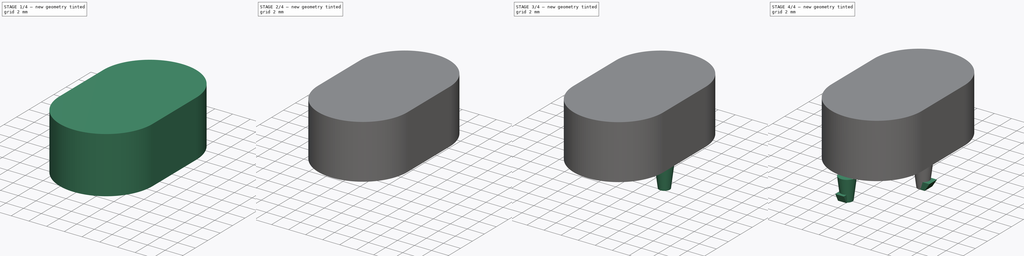
[diagram: build sequence overview — one tinted view per stage of 4, left to right]
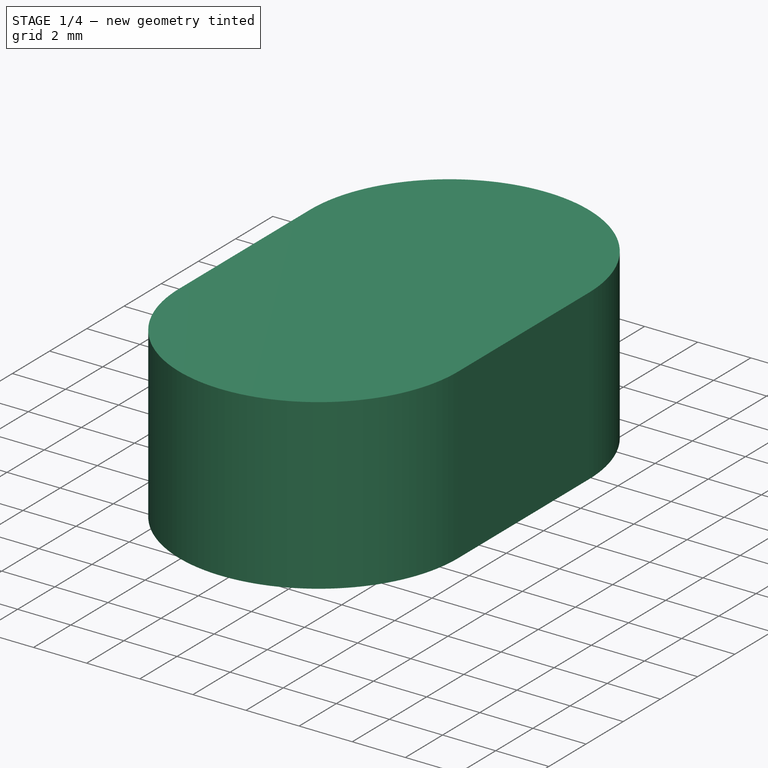
[diagram: stage 1 of 4 — iso view after this stage's code; geometry added in this stage tinted green]
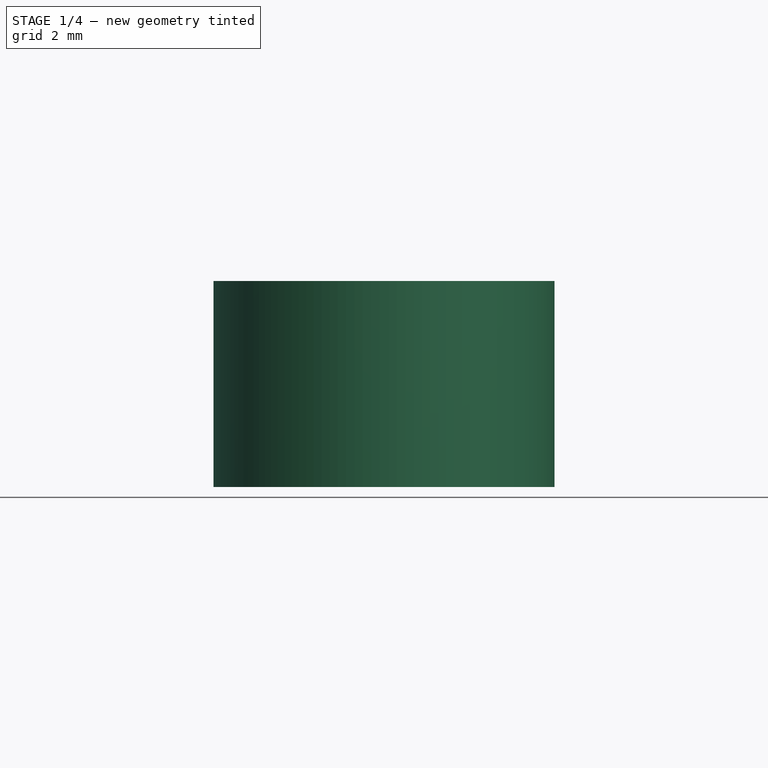
[diagram: stage 1 of 4 — front view after this stage's code; geometry added in this stage tinted green]
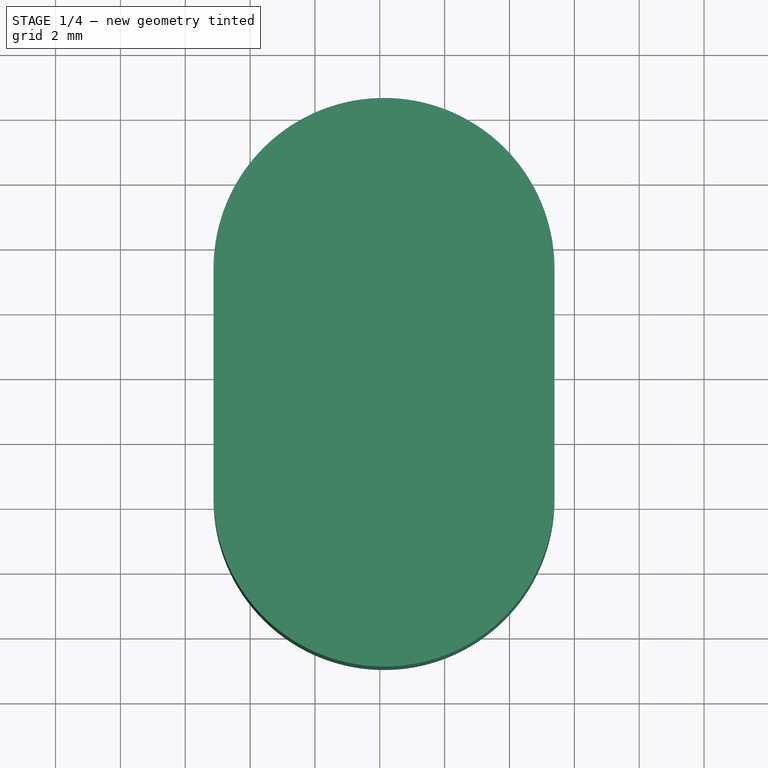
[diagram: stage 1 of 4 — top view after this stage's code; geometry added in this stage tinted green]
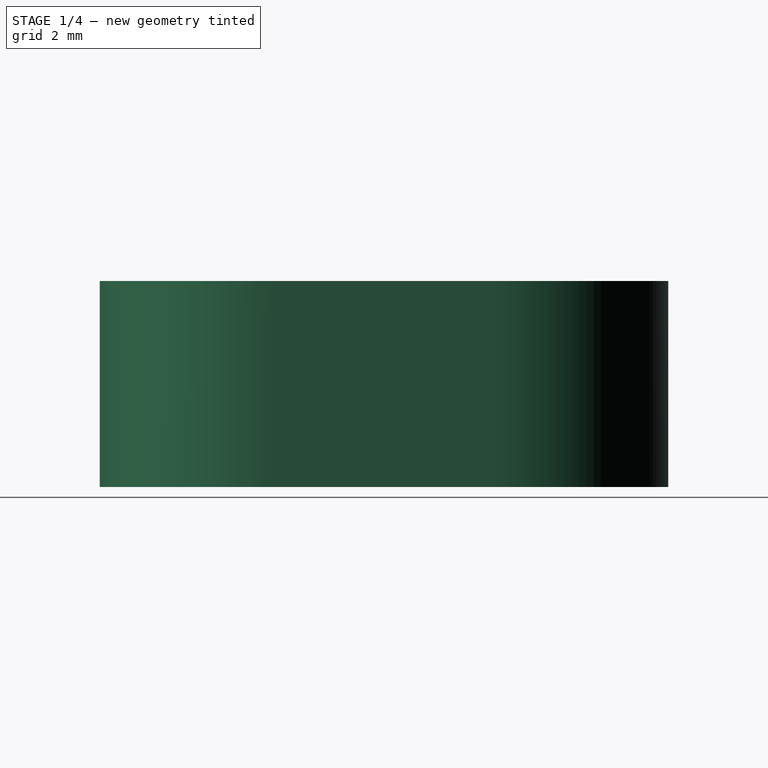
[diagram: stage 1 of 4 — right view after this stage's code; geometry added in this stage tinted green]
FCSTD DOCUMENT  (FreeCAD 1.0R39109 (Git))
Label: Gymtimer
License: All rights reserved
LicenseURL: http://en.wikipedia.org/wiki/All_rights_reserved
objects: Sketcher::SketchObject×16, App::Part×7, Part::Feature×6, PartDesign::Pad×6, PartDesign::AdditiveLoft×4, PartDesign::Line×2, PartDesign::Thickness×1, PartDesign::Pocket×1, PartDesign::Plane×1, PartDesign::Body×1
note: 78 computed .brp shape members not serialized (recipe doc carries the construction recipe); baked Part::Feature solids carry a one-line shape summary decoded from their .brp

FEATURE [Part::Feature] Part__Feature  label="COMPOUND"
  shape: bbox 4.6 x 12.3 x 5.146 mm, 56 faces, 4 solids (baked)
FEATURE [App::Part] Z4TH7B2120042P
  Group = -> [Part__Feature]
  Origin = -> Origin
  Placement = pos=(-6.5,-19,1.63) rot=(0,0,1;3.14159rad)
FEATURE [Part::Feature] Part__Feature001  label="COMPOUND001"
  shape: bbox 4.9 x 3 x 1.435 mm, 92 faces, 10 solids (baked)
FEATURE [App::Part] MSOP_8  label="MSOP-8"
  Group = -> [Part__Feature001]
  Origin = -> Origin001
  Placement = pos=(9.325,-20.5,1.63) rot=(0,0,1;1.5708rad)
FEATURE [Part::Feature] Part__Feature002  label="COMPOUND002"
  shape: bbox 6.617 x 2.517 x 6.017 mm, 283 faces, 5 solids (baked)
FEATURE [App::Part] evqq2_bfkpuy_02w_  label="evqq2-bfkpuy-02w_"
  Group = -> [Part__Feature002]
  Origin = -> Origin002
  Placement = pos=(0,-9.5,1.63) rot=(0,0.707107,0.707107;3.14159rad)
FEATURE [Part::Feature] Part__Feature003  label="SOLID"
  shape: bbox 22.35 x 7.063 x 15.49 mm, 138 faces (baked)
FEATURE [App::Part] BK_913  label="BK-913"
  Group = -> [Part__Feature003]
  Origin = -> Origin003
  Placement = pos=(0,-38,-1.07) rot=(1,0,0;1.5708rad)
FEATURE [Part::Feature] Part__Feature004  label="COMPOUND003"
  shape: bbox 0.625 x 0.325 x 0.32 mm, 18 faces, 3 solids (baked)
FEATURE [App::Part] TVS___PESD4V0Y1BSFYL_cp
  Group = -> [Part__Feature004]
  Origin = -> Origin004
  Placement = pos=(5,-22.66,1.63) rot=(0,0,-1;1.5708rad)
FEATURE [App::Part] Belt_Clip_cp
  Origin = -> Origin005
  Placement = pos=(-2.4e-15,-42.75,-0.05) rot=(-0.707107,0.707107,0;3.14159rad)
FEATURE [Part::Feature] Part__Feature006  label="PCB"
  shape: bbox 25.75 x 44 x 1.58 mm, 43 faces (baked)
FEATURE [App::Part] GymTimer_1  label="GymTimer 1"
  Group = -> [Z4TH7B2120042P,MSOP_8,evqq2_bfkpuy_02w_,BK_913,TVS___PESD4V0Y1BSFYL_cp,Belt_Clip_cp,Part__Feature006]
  Origin = -> Origin006
  Placement = pos=(6.604,22.86,0) rot=(0,0,1;0rad)
FEATURE [Sketcher::SketchObject] Sketch
  ArcFitTolerance = 0
  AttachmentSupport = -> [XY_Plane007]
  FullyConstrained = false
  MakeInternals = false
  MapMode = 5
  sketch-geometry (4):
    g0: ArcOfCircle CenterX=0.129038 CenterY=5.31584 CenterZ=0 NormalX=0 NormalY=0 NormalZ=1 AngleXU=0 Radius=5.25848 StartAngle=0 EndAngle=3.14159
    g1: ArcOfCircle CenterX=0.129038 CenterY=-1.70591 CenterZ=0 NormalX=0 NormalY=0 NormalZ=1 AngleXU=0 Radius=5.25848 StartAngle=3.14159 EndAngle=6.28319
    g2: LineSegment StartX=-5.12945 StartY=5.31584 StartZ=0 EndX=-5.12945 EndY=-1.7059 EndZ=0
    g3: LineSegment StartX=5.38752 StartY=-1.70591 StartZ=0 EndX=5.38752 EndY=5.31584 EndZ=0
  constraints (6):
    c: Tangent(g0,g2) = -1.5708
    c: Tangent(g2,g1) = -1.5708
    c: Tangent(g1,g3) = -1.5708
    c: Tangent(g3,g0) = -1.5708
    c: Equal(g0,g1)
    c: Vertical(g2)
FEATURE [PartDesign::Pad] Pad
  Direction = (0,0,1)
  Length = 6.35
  Length2 = 9.906
  Profile = -> Sketch
  ReferenceAxis = -> Sketch [N_Axis]
  Suppressed = false
  Type = 0
FEATURE [PartDesign::Thickness] Thickness
  Base = -> Pad [Face5]
  BaseFeature = -> Pad
  Intersection = false
  Join = 0
  Mode = 0
  Reversed = true
  SupportTransform = false
  Suppressed = false
  Value = 1.397
FEATURE [Sketcher::SketchObject] Sketch001
  ArcFitTolerance = 0
  AttachmentSupport = -> [XZ_Plane007]
  FullyConstrained = false
  MakeInternals = false
  MapMode = 5
  Placement = pos=(0,0,0) rot=(1,0,0;1.5708rad)
  sketch-geometry (10):
    g0: LineSegment StartX=-2.2491 StartY=0 StartZ=0 EndX=-2.2491 EndY=3.16895 EndZ=0
    g1: LineSegment StartX=-2.2491 StartY=3.16895 StartZ=0 EndX=-1.41925 EndY=5.02401 EndZ=0
    g2: LineSegment StartX=-1.41925 StartY=5.02401 StartZ=0 EndX=1.61944 EndY=5.02401 EndZ=0
    g3: LineSegment StartX=1.61944 StartY=5.02401 StartZ=0 EndX=2.45243 EndY=3.18428 EndZ=0
    g4: LineSegment StartX=2.45243 StartY=3.18428 StartZ=0 EndX=2.45243 EndY=0 EndZ=0
    g5: LineSegment StartX=2.45243 StartY=0 StartZ=0 EndX=4.66591 EndY=0 EndZ=0
    g6: LineSegment StartX=4.66591 StartY=0 StartZ=0 EndX=4.66591 EndY=5.88397 EndZ=0
    g7: LineSegment StartX=4.66591 StartY=5.88397 StartZ=0 EndX=-4.4826 EndY=5.88397 EndZ=0
    g8: LineSegment StartX=-4.4826 StartY=5.88397 StartZ=0 EndX=-4.4826 EndY=0 EndZ=0
    g9: LineSegment StartX=-4.4826 StartY=0 StartZ=0 EndX=-2.2491 EndY=0 EndZ=0
  constraints (20):
    c: PointOnObject(g0,g-1)
    c: Vertical(g0)
    c: Coincident(g0,g1)
    c: Coincident(g1,g2)
    c: Horizontal(g2)
    c: Coincident(g2,g3)
    c: Coincident(g3,g4)
    c: PointOnObject(g4,g-1)
    c: Vertical(g4)
    c: Coincident(g4,g5)
    c: PointOnObject(g5,g-1)
    c: Coincident(g5,g6)
    c: Vertical(g6)
    c: Coincident(g6,g7)
    c: Horizontal(g7)
    c: Coincident(g7,g8)
    c: PointOnObject(g8,g-1)
    c: Vertical(g8)
    c: Coincident(g8,g9)
    c: Coincident(g9,g0)
FEATURE [PartDesign::Pad] Pad001
  BaseFeature = -> Thickness
  Direction = (0,-1,2e-16)
  Length = 2.54
  Length2 = 9.906
  Midplane = true
  Profile = -> Sketch001
  ReferenceAxis = -> Sketch001 [N_Axis]
  Suppressed = false
  Type = 0
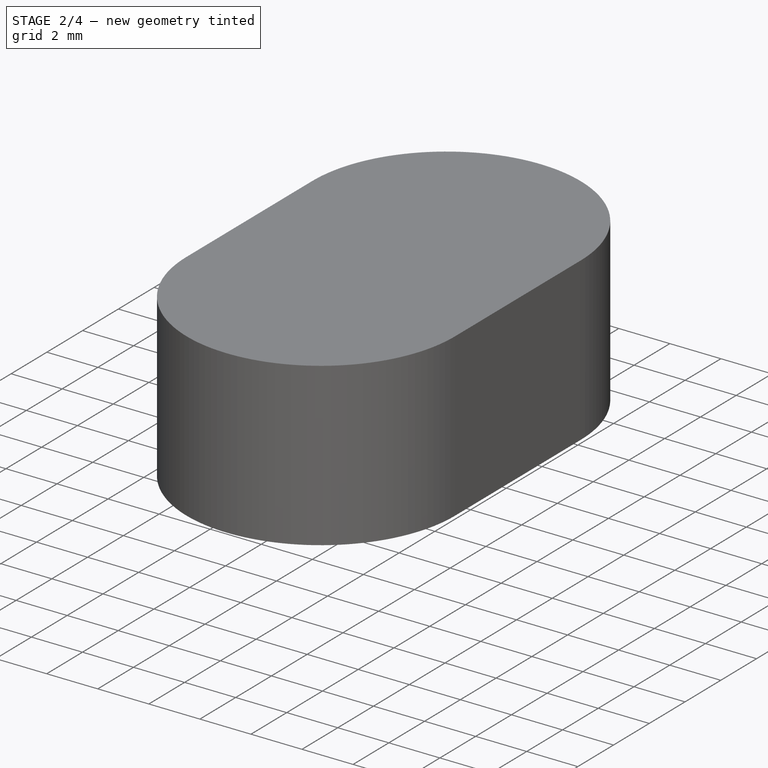
[diagram: stage 2 of 4 — iso view after this stage's code; geometry added in this stage tinted green]
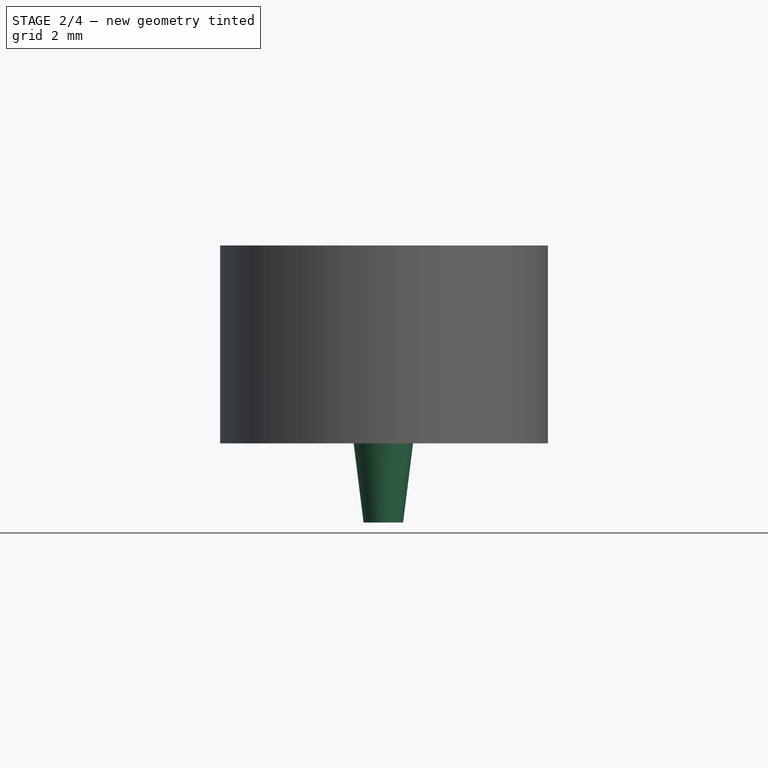
[diagram: stage 2 of 4 — front view after this stage's code; geometry added in this stage tinted green]
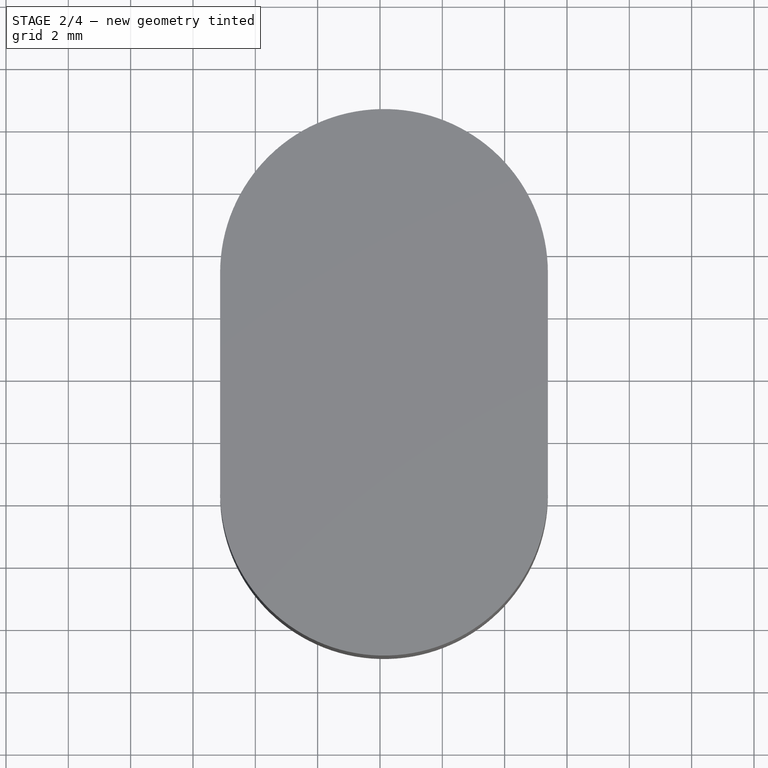
[diagram: stage 2 of 4 — top view after this stage's code; geometry added in this stage tinted green]
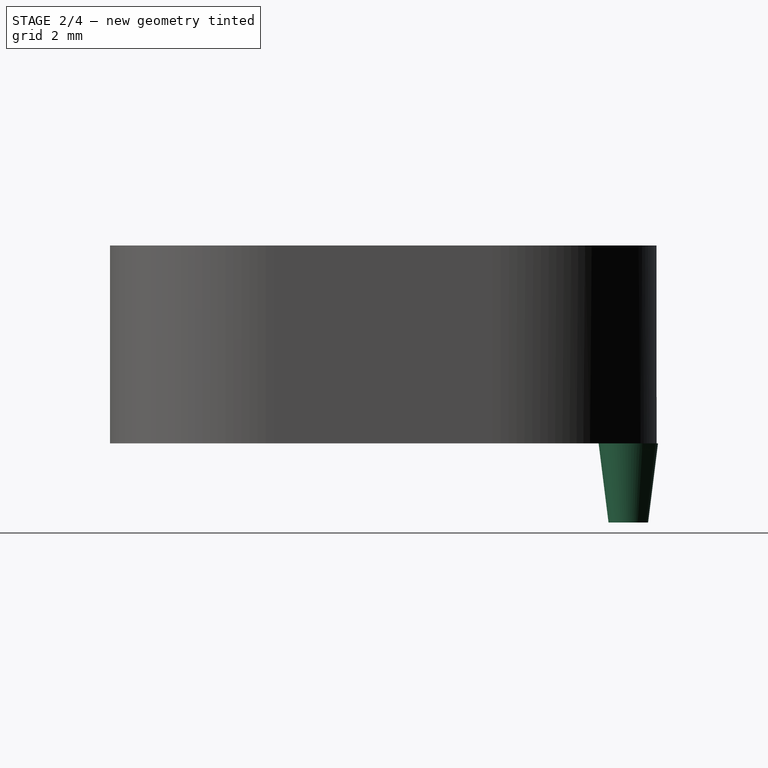
[diagram: stage 2 of 4 — right view after this stage's code; geometry added in this stage tinted green]
FEATURE [Sketcher::SketchObject] Sketch002
  ArcFitTolerance = 0
  AttachmentOffset = pos=(0,25.4,-3.937) rot=(0,0,1;0rad)
  AttachmentSupport = -> [XZ_Plane007]
  FullyConstrained = false
  MakeInternals = false
  MapMode = 5
  Placement = pos=(0,3.937,25.4) rot=(1,0,0;1.5708rad)
  sketch-geometry (8):
    g0: LineSegment StartX=-3.87631 StartY=-25.3358 StartZ=0 EndX=-0.654982 EndY=-21.9078 EndZ=0
    g1: ArcOfCircle CenterX=0.081753 CenterY=-22.6001 CenterZ=0 NormalX=0 NormalY=0 NormalZ=1 AngleXU=0 Radius=1.01098 StartAngle=0.754329 EndAngle=2.38726
    g2: LineSegment StartX=0.818489 StartY=-21.9078 StartZ=0 EndX=4.04622 EndY=-25.3426 EndZ=0
    g3: LineSegment StartX=4.04622 StartY=-25.3426 StartZ=0 EndX=4.9558 EndY=-25.3426 EndZ=0
    g4: LineSegment StartX=4.9558 StartY=-25.3426 StartZ=0 EndX=4.9558 EndY=-19.4509 EndZ=0
    g5: LineSegment StartX=4.9558 StartY=-19.4509 StartZ=0 EndX=-4.54403 EndY=-19.4509 EndZ=0
    g6: LineSegment StartX=-4.54403 StartY=-19.4509 StartZ=0 EndX=-4.54403 EndY=-25.3358 EndZ=0
    g7: LineSegment StartX=-4.54403 StartY=-25.3358 StartZ=0 EndX=-3.87631 EndY=-25.3358 EndZ=0
  constraints (14):
    c: Tangent(g0,g1) = 1.5708
    c: Tangent(g1,g2) = 1.5708
    c: Coincident(g2,g3)
    c: Horizontal(g3)
    c: Coincident(g3,g4)
    c: Vertical(g4)
    c: Coincident(g4,g5)
    c: Horizontal(g5)
    c: Coincident(g5,g6)
    c: Vertical(g6)
    c: Coincident(g7,g6)
    c: Coincident(g7,g0)
    c: Horizontal(g7)
    c: Horizontal(g0,g1)
FEATURE [PartDesign::Pad] Pad002
  BaseFeature = -> Pad001
  Direction = (0,-1,2e-16)
  Length = 0.635
  Length2 = 9.906
  Profile = -> Sketch002
  ReferenceAxis = -> Sketch002 [N_Axis]
  Reversed = true
  Suppressed = false
  Type = 0
FEATURE [Sketcher::SketchObject] Sketch003
  ArcFitTolerance = 0
  AttachmentSupport = -> [XY_Plane007]
  FullyConstrained = false
  MakeInternals = false
  MapMode = 5
  sketch-geometry (4):
    g0: LineSegment StartX=-2.7747 StartY=8.38278 StartZ=0 EndX=2.78679 EndY=8.38278 EndZ=0
    g1: LineSegment StartX=2.78679 StartY=8.38278 StartZ=0 EndX=2.78679 EndY=4.59702 EndZ=0
    g2: LineSegment StartX=2.78679 StartY=4.59702 StartZ=0 EndX=-2.7747 EndY=4.59702 EndZ=0
    g3: LineSegment StartX=-2.7747 StartY=4.59702 StartZ=0 EndX=-2.7747 EndY=8.38278 EndZ=0
  constraints (8):
    c: Coincident(g0,g1)
    c: Coincident(g1,g2)
    c: Coincident(g2,g3)
    c: Coincident(g3,g0)
    c: Horizontal(g0)
    c: Horizontal(g2)
    c: Vertical(g1)
    c: Vertical(g3)
FEATURE [PartDesign::Pocket] Pocket
  BaseFeature = -> Pad002
  Direction = (0,0,-1)
  Length = 5.334
  Length2 = 5.08
  Profile = -> Sketch003
  ReferenceAxis = -> Sketch003 [N_Axis]
  Reversed = true
  Suppressed = false
  Type = 0
FEATURE [Sketcher::SketchObject] Sketch004
  ArcFitTolerance = 0
  AttachmentSupport = -> [XY_Plane007]
  FullyConstrained = false
  MakeInternals = false
  MapMode = 5
  sketch-geometry (1):
    g0: Circle CenterX=0.1068 CenterY=9.66666 CenterZ=0 NormalX=0 NormalY=0 NormalZ=1 AngleXU=0 Radius=0.9525
  constraints (1):
    c: Diameter(g0) = 1.905
FEATURE [Sketcher::SketchObject] Sketch005
  ArcFitTolerance = 0
  AttachmentOffset = pos=(0,0,-2.54) rot=(0,0,1;0rad)
  AttachmentSupport = -> [XY_Plane007]
  FullyConstrained = false
  MakeInternals = false
  MapMode = 5
  Placement = pos=(0,0,-2.54) rot=(0,0,1;0rad)
  sketch-geometry (1):
    g0: Circle CenterX=0.1068 CenterY=9.66666 CenterZ=0 NormalX=0 NormalY=0 NormalZ=1 AngleXU=0 Radius=0.635
  constraints (1):
    c: Diameter(g0) = 1.27
FEATURE [PartDesign::AdditiveLoft] AdditiveLoft
  BaseFeature = -> Pocket
  Closed = false
  Profile = -> Sketch004
  Ruled = false
  Sections = -> [Sketch005]
  Suppressed = false
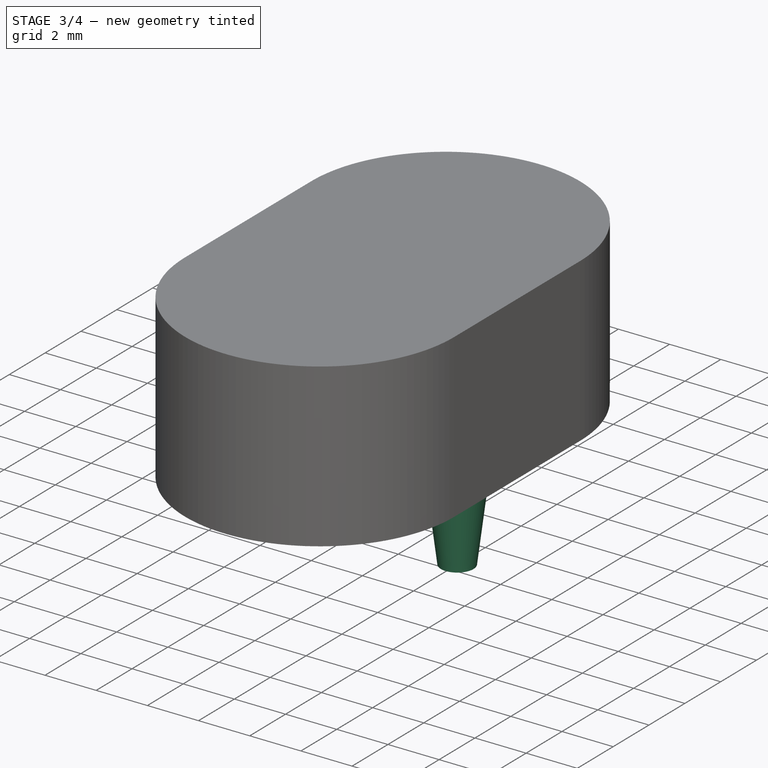
[diagram: stage 3 of 4 — iso view after this stage's code; geometry added in this stage tinted green]
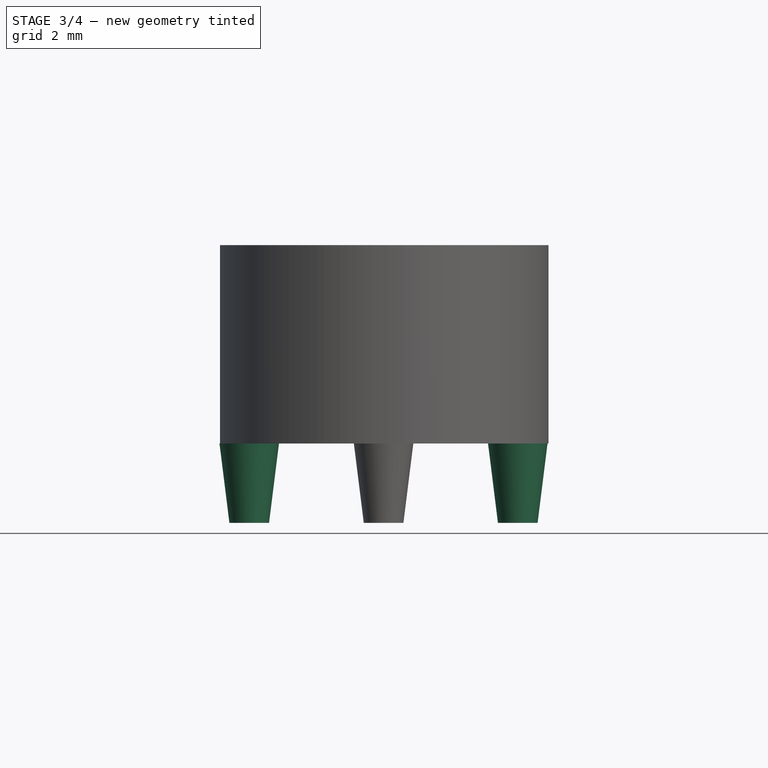
[diagram: stage 3 of 4 — front view after this stage's code; geometry added in this stage tinted green]
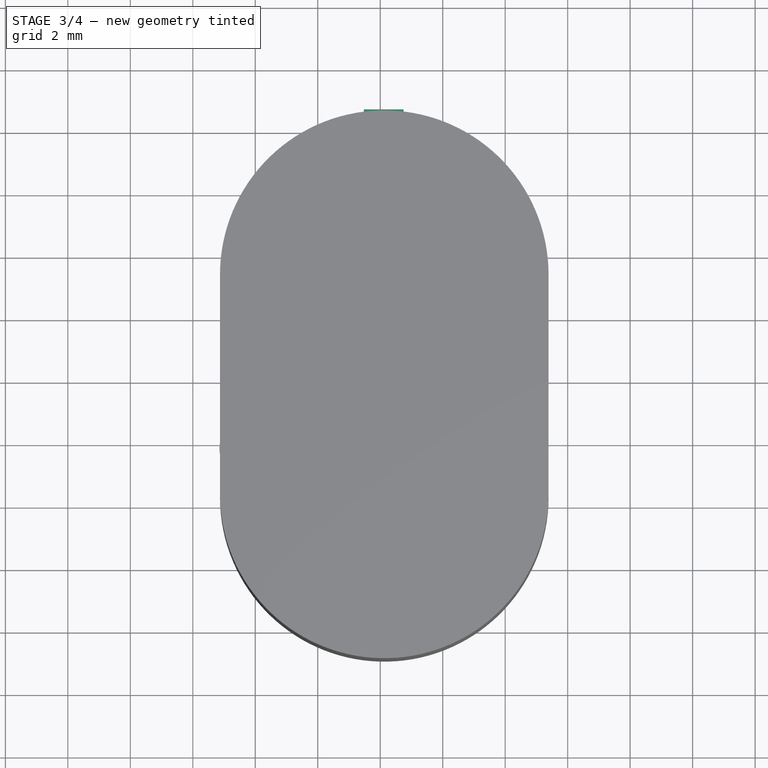
[diagram: stage 3 of 4 — top view after this stage's code; geometry added in this stage tinted green]
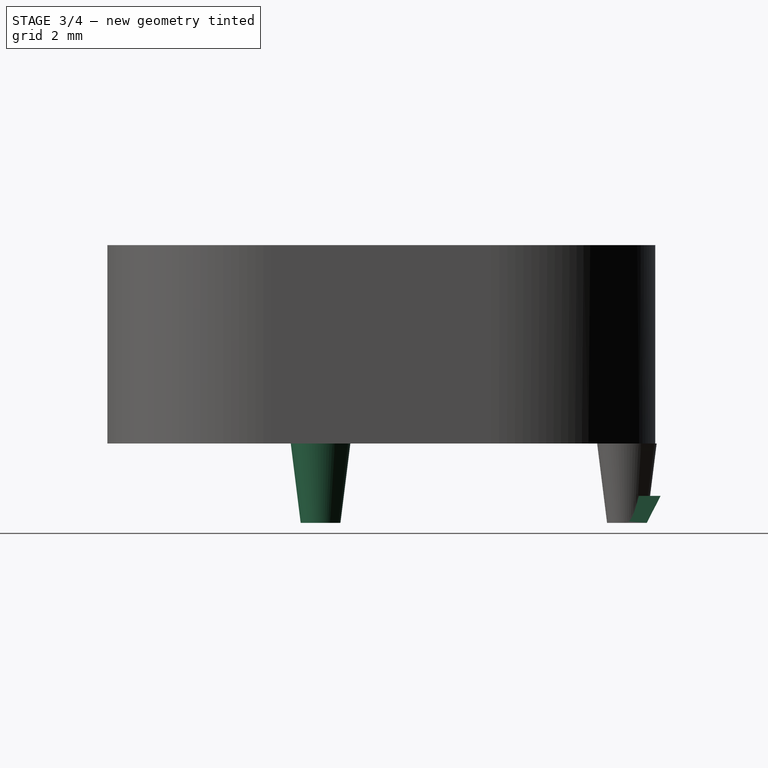
[diagram: stage 3 of 4 — right view after this stage's code; geometry added in this stage tinted green]
FEATURE [Sketcher::SketchObject] Sketch006
  ArcFitTolerance = 0
  AttachmentOffset = pos=(0,0,0.11) rot=(0,0,1;0rad)
  AttachmentSupport = -> [YZ_Plane007]
  ExternalGeometry = -> [AdditiveLoft]
  FullyConstrained = false
  MakeInternals = false
  MapMode = 5
  Placement = pos=(0.11,0,0) rot=(0.57735,0.57735,0.57735;2.0944rad)
  sketch-geometry (15):
    g0: LineSegment [constr] StartX=9.03166 StartY=-2.54 StartZ=0 EndX=9.66666 EndY=-2.54 EndZ=0
    g1: LineSegment StartX=9.66666 StartY=-2.54 StartZ=0 EndX=10.3017 EndY=-2.54 EndZ=0
    g2: LineSegment StartX=9.66666 StartY=-2.54 StartZ=0 EndX=9.66666 EndY=-1.6764 EndZ=0
    g3: LineSegment StartX=9.66666 StartY=-1.6764 StartZ=0 EndX=10.7462 EndY=-1.6764 EndZ=0
    g4: LineSegment StartX=10.7462 StartY=-1.6764 StartZ=0 EndX=10.3017 EndY=-2.54 EndZ=0
    g5: GeomPoint X=10.6446 Y=-1.6764 Z=0
    g6: LineSegment [constr] StartX=8.66622 StartY=-1.65214 StartZ=0 EndX=-5.64954 EndY=-1.65214 EndZ=0
    g7: GeomPoint [constr] X=1.50834 Y=-1.65214 Z=0
    g8: LineSegment [constr] StartX=1.50834 StartY=-1.65214 StartZ=0 EndX=1.50834 EndY=-5.33821 EndZ=0
    g9: LineSegment [constr] StartX=-6.01498 StartY=-2.54 StartZ=0 EndX=-6.64998 EndY=-2.54 EndZ=0
    g10: LineSegment StartX=-6.64998 StartY=-2.54 StartZ=0 EndX=-7.28498 EndY=-2.54 EndZ=0
    g11: LineSegment StartX=-6.64998 StartY=-2.54 StartZ=0 EndX=-6.64998 EndY=-1.6764 EndZ=0
    g12: LineSegment StartX=-6.64998 StartY=-1.6764 StartZ=0 EndX=-7.72948 EndY=-1.6764 EndZ=0
    g13: LineSegment StartX=-7.72948 StartY=-1.6764 StartZ=0 EndX=-7.28498 EndY=-2.54 EndZ=0
    g14: GeomPoint [constr] X=-7.62788 Y=-1.6764 Z=0
  constraints (28):
    c: Coincident(g0,g-3)
    c: Coincident(g1,g-3)
    c: Coincident(g0,g1)
    c: Equal(g1,g0)
    c: Coincident(g1,g2)
    c: Vertical(g2)
    c: Coincident(g2,g3)
    c: Horizontal(g3)
    c: Coincident(g3,g4)
    c: Coincident(g4,g1)
    c: PointOnObject(g1,g-3)
    c: DistanceY(g2,g2) = 0.8636
    c: PointOnObject(g5,g3)
    c: DistanceX(g2,g5) = 0.9779
    c: DistanceX(g5,g3) = 0.1016
    c: Horizontal(g6)
    c: Symmetric(g6,g6,g7)
    c: Coincident(g8,g7)
    c: Vertical(g8)
    c: Coincident(g9,g10)
    c: Equal(g10,g9)
    c: Coincident(g10,g11)
    c: Vertical(g11)
    c: Coincident(g11,g12)
    c: Horizontal(g12)
    c: Coincident(g12,g13)
    c: Coincident(g13,g10)
    c: PointOnObject(g14,g12)
FEATURE [PartDesign::Pad] Pad003
  BaseFeature = -> AdditiveLoft
  Direction = (1,-2e-16,3e-16)
  Length = 1.27
  Length2 = 9.906
  Midplane = true
  Profile = -> Sketch006
  ReferenceAxis = -> Sketch006 [N_Axis]
  Suppressed = false
  Type = 0
FEATURE [Sketcher::SketchObject] Sketch007
  ArcFitTolerance = 0
  AttachmentSupport = -> [XY_Plane007]
  FullyConstrained = false
  MakeInternals = false
  MapMode = 5
  sketch-geometry (4):
    g0: Circle [constr] CenterX=0.103388 CenterY=9.66535 CenterZ=0 NormalX=0 NormalY=0 NormalZ=1 AngleXU=0 Radius=0.9525
    g1: Circle CenterX=4.40172 CenterY=-0.137997 CenterZ=0 NormalX=0 NormalY=0 NormalZ=1 AngleXU=0 Radius=0.9525
    g2: Circle [constr] CenterX=-4.19431 CenterY=-0.141108 CenterZ=0 NormalX=0 NormalY=0 NormalZ=1 AngleXU=0 Radius=0.9525
    g3: Circle [constr] CenterX=0.107278 CenterY=-6.63853 CenterZ=0 NormalX=0 NormalY=0 NormalZ=1 AngleXU=0 Radius=0.9525
  constraints (4):
    c: Diameter(g0) = 1.905
    c: Equal(g0,g1) = 1.905
    c: Equal(g0,g2) = 1.905
    c: Equal(g0,g3) = 1.905
FEATURE [Sketcher::SketchObject] Sketch008
  ArcFitTolerance = 0
  AttachmentOffset = pos=(0,0,-2.54) rot=(0,0,1;0rad)
  AttachmentSupport = -> [XY_Plane007]
  ExternalGeometry = -> [Sketch007]
  FullyConstrained = true
  MakeInternals = false
  MapMode = 5
  Placement = pos=(0,0,-2.54) rot=(0,0,1;0rad)
  sketch-geometry (1):
    g0: Circle CenterX=4.40172 CenterY=-0.137997 CenterZ=0 NormalX=0 NormalY=0 NormalZ=1 AngleXU=0 Radius=0.635
  constraints (2):
    c: Coincident(g0,g-3)
    c: Diameter(g0) = 1.27
FEATURE [PartDesign::AdditiveLoft] AdditiveLoft001
  BaseFeature = -> Pad003
  Closed = false
  Profile = -> Sketch007
  Ruled = false
  Sections = -> [Sketch008]
  Suppressed = false
FEATURE [Sketcher::SketchObject] Sketch009
  ArcFitTolerance = 0
  AttachmentSupport = -> [XY_Plane007]
  FullyConstrained = false
  MakeInternals = false
  MapMode = 5
  sketch-geometry (4):
    g0: Circle [constr] CenterX=0.103388 CenterY=9.66535 CenterZ=0 NormalX=0 NormalY=0 NormalZ=1 AngleXU=0 Radius=0.9525
    g1: Circle [constr] CenterX=4.40172 CenterY=-0.137997 CenterZ=0 NormalX=0 NormalY=0 NormalZ=1 AngleXU=0 Radius=0.9525
    g2: Circle CenterX=-4.19431 CenterY=-0.141108 CenterZ=0 NormalX=0 NormalY=0 NormalZ=1 AngleXU=0 Radius=0.9525
    g3: Circle [constr] CenterX=0.107278 CenterY=-6.63853 CenterZ=0 NormalX=0 NormalY=0 NormalZ=1 AngleXU=0 Radius=0.9525
  constraints (4):
    c: Diameter(g0) = 1.905
    c: Equal(g0,g1) = 1.905
    c: Equal(g0,g2) = 1.905
    c: Equal(g0,g3) = 1.905
FEATURE [Sketcher::SketchObject] Sketch010
  ArcFitTolerance = 0
  AttachmentSupport = -> [XY_Plane007]
  FullyConstrained = false
  MakeInternals = false
  MapMode = 5
  sketch-geometry (4):
    g0: Circle [constr] CenterX=0.103388 CenterY=9.66535 CenterZ=0 NormalX=0 NormalY=0 NormalZ=1 AngleXU=0 Radius=0.9525
    g1: Circle [constr] CenterX=4.40172 CenterY=-0.137997 CenterZ=0 NormalX=0 NormalY=0 NormalZ=1 AngleXU=0 Radius=0.9525
    g2: Circle [constr] CenterX=-4.19431 CenterY=-0.141108 CenterZ=0 NormalX=0 NormalY=0 NormalZ=1 AngleXU=0 Radius=0.9525
    g3: Circle CenterX=0.107278 CenterY=-6.63853 CenterZ=0 NormalX=0 NormalY=0 NormalZ=1 AngleXU=0 Radius=0.9525
  constraints (4):
    c: Diameter(g0) = 1.905
    c: Equal(g0,g1) = 1.905
    c: Equal(g0,g2) = 1.905
    c: Equal(g0,g3) = 1.905
FEATURE [Sketcher::SketchObject] Sketch011
  ArcFitTolerance = 0
  AttachmentOffset = pos=(0,0,-2.54) rot=(0,0,1;0rad)
  AttachmentSupport = -> [XY_Plane007]
  ExternalGeometry = -> [Sketch009]
  FullyConstrained = true
  MakeInternals = false
  MapMode = 5
  Placement = pos=(0,0,-2.54) rot=(0,0,1;0rad)
  sketch-geometry (1):
    g0: Circle CenterX=-4.19431 CenterY=-0.141108 CenterZ=0 NormalX=0 NormalY=0 NormalZ=1 AngleXU=0 Radius=0.635
  constraints (2):
    c: Coincident(g0,g-3)
    c: Diameter(g0) = 1.27
FEATURE [PartDesign::AdditiveLoft] AdditiveLoft002
  BaseFeature = -> AdditiveLoft001
  Closed = false
  Profile = -> Sketch011
  Ruled = false
  Sections = -> [Sketch009]
  Suppressed = false
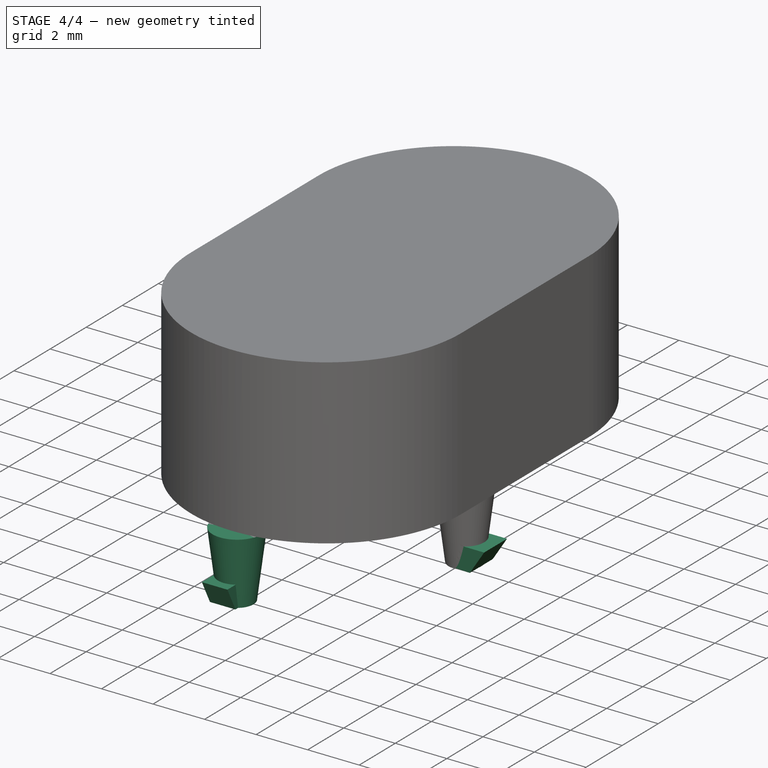
[diagram: stage 4 of 4 — iso view after this stage's code; geometry added in this stage tinted green]
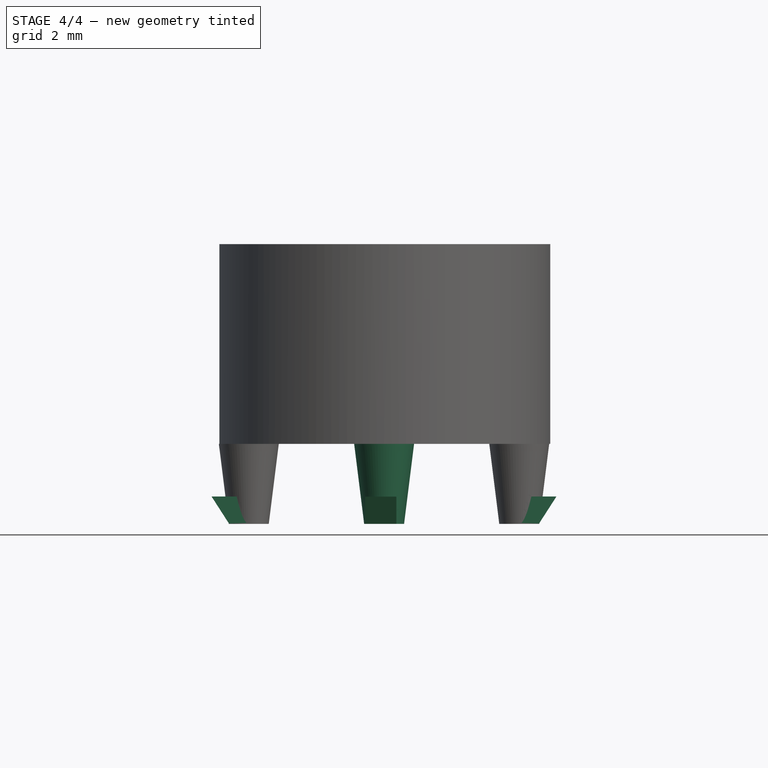
[diagram: stage 4 of 4 — front view after this stage's code; geometry added in this stage tinted green]
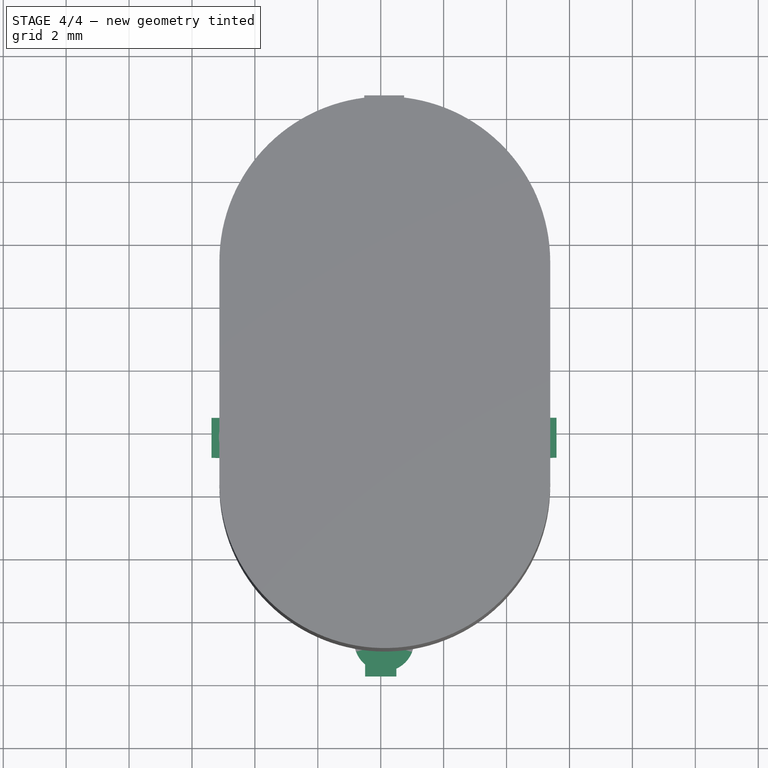
[diagram: stage 4 of 4 — top view after this stage's code; geometry added in this stage tinted green]
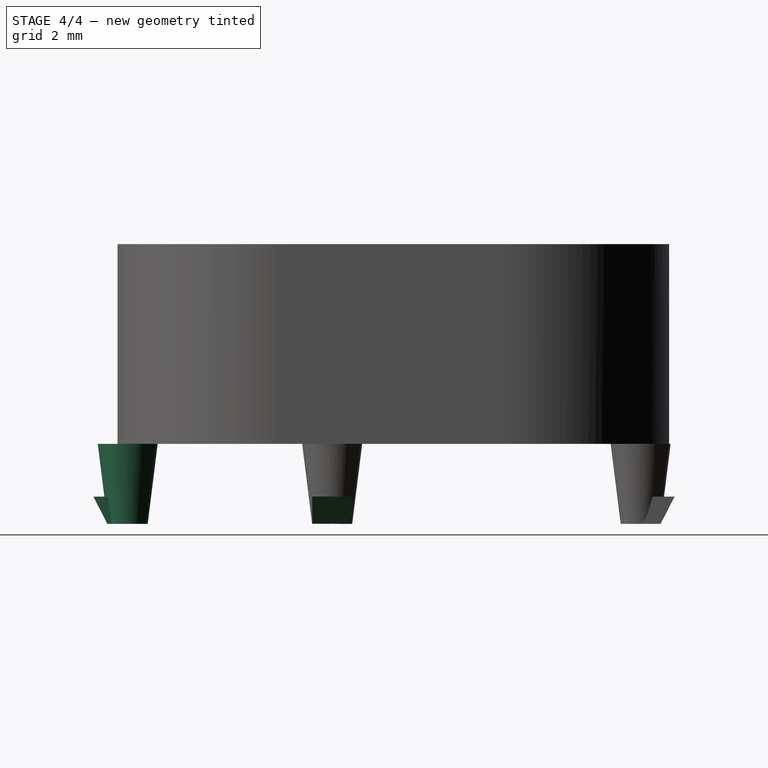
[diagram: stage 4 of 4 — right view after this stage's code; geometry added in this stage tinted green]
FEATURE [Sketcher::SketchObject] Sketch012
  ArcFitTolerance = 0
  AttachmentOffset = pos=(0,0,-2.54) rot=(0,0,1;0rad)
  AttachmentSupport = -> [XY_Plane007]
  ExternalGeometry = -> [Sketch010]
  FullyConstrained = true
  MakeInternals = false
  MapMode = 5
  Placement = pos=(0,0,-2.54) rot=(0,0,1;0rad)
  sketch-geometry (1):
    g0: Circle CenterX=0.107278 CenterY=-6.63853 CenterZ=0 NormalX=0 NormalY=0 NormalZ=1 AngleXU=0 Radius=0.635
  constraints (2):
    c: Coincident(g0,g-3)
    c: Diameter(g0) = 1.27
FEATURE [PartDesign::AdditiveLoft] AdditiveLoft003
  BaseFeature = -> AdditiveLoft002
  Closed = false
  Profile = -> Sketch012
  Ruled = false
  Sections = -> [Sketch010]
  Suppressed = false
FEATURE [Sketcher::SketchObject] Sketch013
  ArcFitTolerance = 0
  AttachmentSupport = -> [YZ_Plane007]
  ExternalGeometry = -> [Sketch006]
  FullyConstrained = true
  MakeInternals = false
  MapMode = 5
  Placement = pos=(0,0,0) rot=(0.57735,0.57735,0.57735;2.0944rad)
  sketch-geometry (4):
    g0: LineSegment StartX=-6.64998 StartY=-1.6764 StartZ=0 EndX=-6.64998 EndY=-2.54 EndZ=0
    g1: LineSegment StartX=-6.64998 StartY=-2.54 StartZ=0 EndX=-7.28498 EndY=-2.54 EndZ=0
    g2: LineSegment StartX=-7.28498 StartY=-2.54 StartZ=0 EndX=-7.72948 EndY=-1.6764 EndZ=0
    g3: LineSegment StartX=-7.72948 StartY=-1.6764 StartZ=0 EndX=-6.64998 EndY=-1.6764 EndZ=0
  constraints (8):
    c: Coincident(g0,g-9)
    c: Coincident(g0,g-8)
    c: Coincident(g1,g0)
    c: Coincident(g1,g-8)
    c: Coincident(g2,g1)
    c: Coincident(g2,g-9)
    c: Coincident(g3,g2)
    c: Coincident(g3,g0)
FEATURE [PartDesign::Pad] Pad004
  BaseFeature = -> AdditiveLoft003
  Direction = (1,1,1)
  Length = 0.9906
  Length2 = 9.906
  Midplane = true
  Profile = -> Sketch013
  Suppressed = false
  Type = 0
FEATURE [PartDesign::Line] DatumLine
  AttacherType = Attacher::AttachEngineLine
  AttachmentSupport = -> [Pad004]
  Length = 20
  MapMode = 42
  Placement = pos=(-4.19431,-0.141108,0) rot=(0,0,1;0rad)
  ResizeMode = 0
FEATURE [PartDesign::Line] DatumLine001
  AttacherType = Attacher::AttachEngineLine
  AttachmentSupport = -> [Pad004]
  Length = 20
  MapMode = 42
  Placement = pos=(4.40172,-0.137997,0) rot=(0,0,1;0rad)
  ResizeMode = 0
FEATURE [PartDesign::Plane] DatumPlane
  AttachmentSupport = -> [DatumLine,DatumLine001]
  Length = 60.0199
  MapMode = 13
  Placement = pos=(-1.32897,-0.140071,0.333333) rot=(-0.000128,0.707107,0.707107;3.14185rad)
  ResizeMode = 0
  Width = 60.0018
FEATURE [Sketcher::SketchObject] Sketch014
  ArcFitTolerance = 0
  AttachmentSupport = -> [DatumPlane]
  ExternalGeometry = -> [DatumLine,DatumLine001]
  FullyConstrained = false
  MakeInternals = false
  MapMode = 5
  Placement = pos=(-1.32897,-0.140071,0.333333) rot=(-0.000128,0.707107,0.707107;3.14185rad)
  sketch-geometry (11):
    g0: LineSegment StartX=2.86238 StartY=-2.864 StartZ=0 EndX=3.49601 EndY=-2.864 EndZ=0
    g1: LineSegment StartX=3.49601 StartY=-2.864 StartZ=0 EndX=4.04988 EndY=-2.00307 EndZ=0
    g2: LineSegment StartX=4.04988 StartY=-2.00307 StartZ=0 EndX=2.86238 EndY=-2.00307 EndZ=0
    g3: LineSegment StartX=2.86238 StartY=-2.864 StartZ=0 EndX=2.86238 EndY=-2.00307 EndZ=0
    g4: LineSegment [constr] StartX=-5.73069 StartY=-3.8392 StartZ=0 EndX=2.86534 EndY=-3.8392 EndZ=0
    g5: GeomPoint [constr] X=-1.43267 Y=-3.8392 Z=0
    g6: LineSegment [constr] StartX=-1.43267 StartY=-3.8392 StartZ=0 EndX=-1.43267 EndY=-6.20065 EndZ=0
    g7: LineSegment StartX=-5.72971 StartY=-2.864 StartZ=0 EndX=-6.36135 EndY=-2.864 EndZ=0
    g8: LineSegment StartX=-6.36135 StartY=-2.864 StartZ=0 EndX=-6.91522 EndY=-2.00307 EndZ=0
    g9: LineSegment StartX=-6.91522 StartY=-2.00307 StartZ=0 EndX=-5.72971 EndY=-2.00307 EndZ=0
    g10: LineSegment StartX=-5.72971 StartY=-2.864 StartZ=0 EndX=-5.72971 EndY=-2.00307 EndZ=0
  constraints (20):
    c: Horizontal(g0)
    c: Coincident(g1,g0)
    c: Coincident(g2,g1)
    c: Horizontal(g2)
    c: Coincident(g3,g0)
    c: Coincident(g3,g2)
    c: Vertical(g3)
    c: PointOnObject(g4,g-4)
    c: PointOnObject(g4,g-3)
    c: Horizontal(g4)
    c: Symmetric(g4,g4,g5)
    c: Coincident(g6,g5)
    c: Vertical(g6)
    c: Horizontal(g7)
    c: Coincident(g8,g7)
    c: Coincident(g9,g8)
    c: Horizontal(g9)
    c: Coincident(g10,g7)
    c: Coincident(g10,g9)
    c: Vertical(g10)
FEATURE [Sketcher::SketchObject] Sketch015
  ArcFitTolerance = 0
  AttachmentSupport = -> [DatumPlane]
  FullyConstrained = true
  MakeInternals = false
  MapMode = 5
  Placement = pos=(-1.32897,-0.140071,0.333333) rot=(-0.000128,0.707107,0.707107;3.14185rad)
FEATURE [PartDesign::Pad] Pad005
  BaseFeature = -> Pad004
  Direction = (-0.000361911,1,0)
  Length = 1.27
  Length2 = 9.906
  Midplane = true
  Profile = -> Sketch014
  ReferenceAxis = -> Sketch014 [N_Axis]
  Suppressed = false
  Type = 0
FEATURE [PartDesign::Body] Body
  AllowCompound = false
  Group = -> [Sketch,Pad,Thickness,Sketch001,Pad001,Sketch002,Pad002,Sketch003,Pocket,Sketch004,Sketch005,AdditiveLoft,Sketch006,Pad003,Sketch007,Sketch008,AdditiveLoft001,Sketch011,Sketch009,Sketch010,AdditiveLoft002,Sketch012,AdditiveLoft003,Sketch013,Pad004,DatumLine,DatumLine001,DatumPlane,Sketch014,Sketch015,Pad005]
  Origin = -> Origin007
  Placement = pos=(0,0,1.651) rot=(0,0,1;0rad)
  Tip = -> Pad005
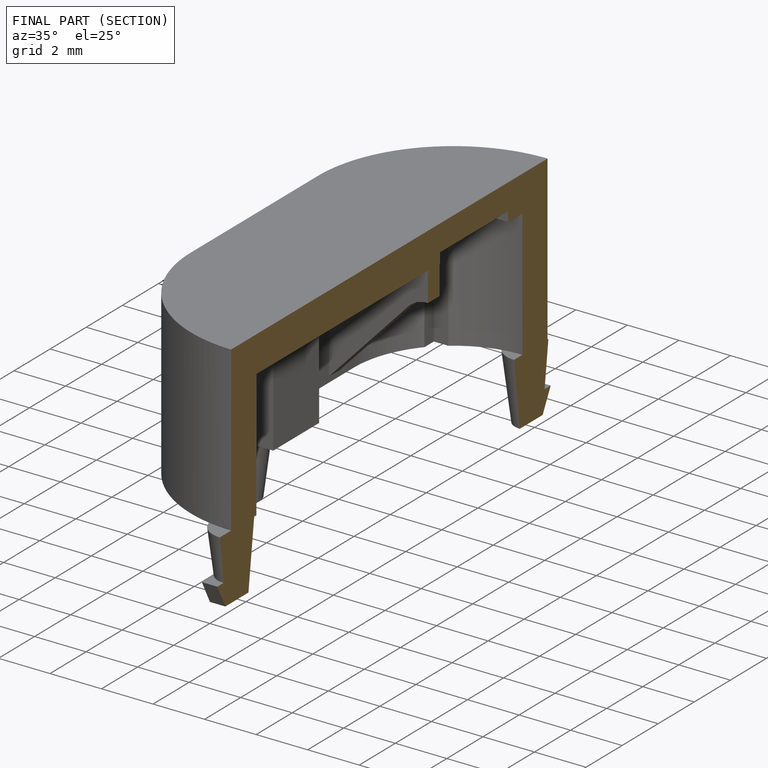
[diagram: finished part — half-section view (interior)]
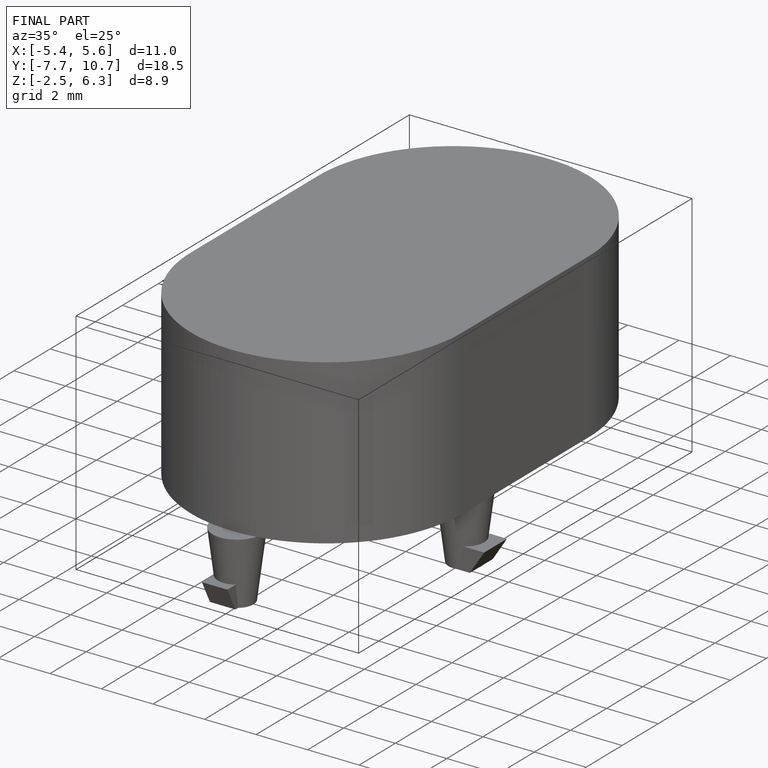
[diagram: finished part — iso view with bounding-box wireframe]
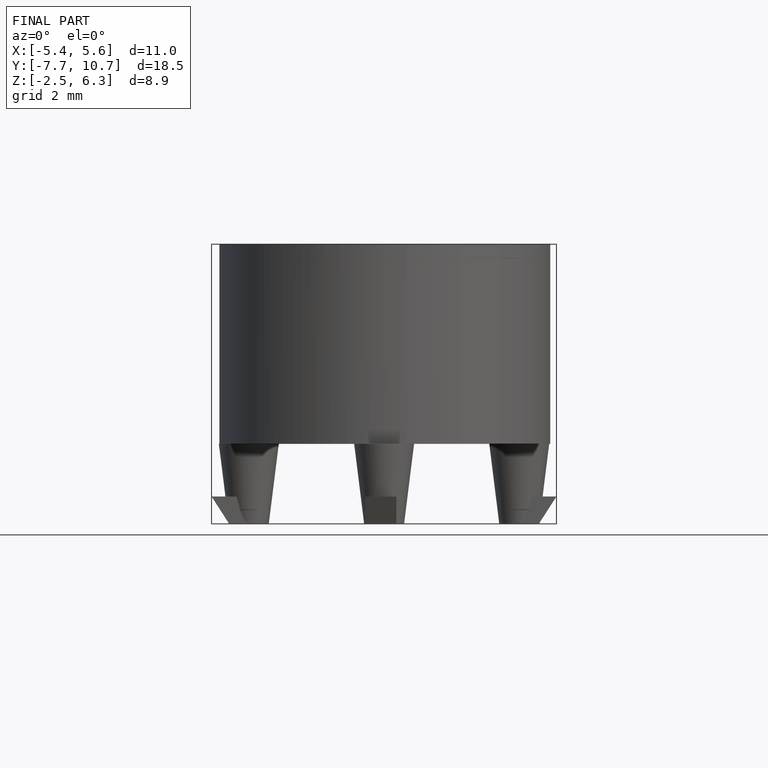
[diagram: finished part — front view with bounding-box wireframe]
